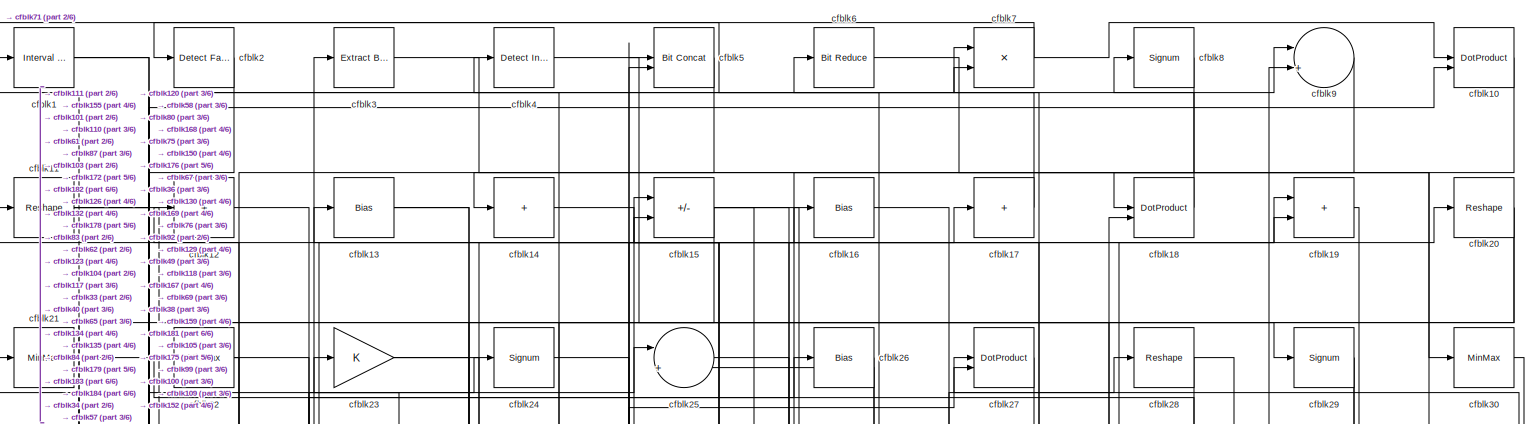
[diagram: root canvas - part 1/6, full width, top band]
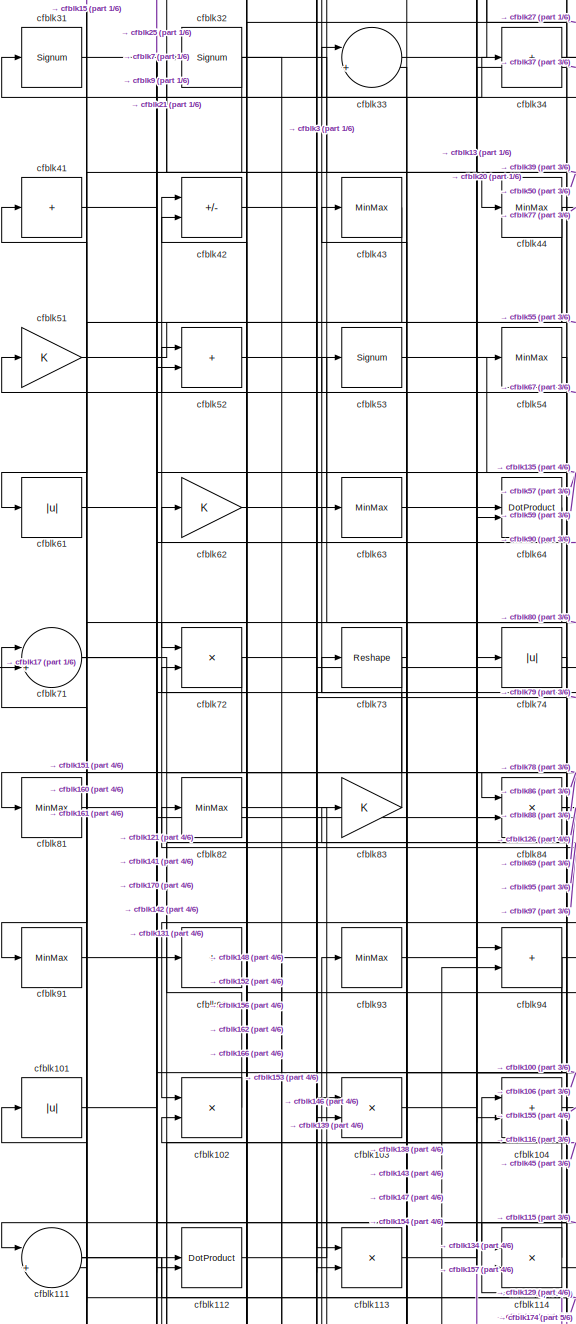
[diagram: root canvas - part 2/6, middle left region]
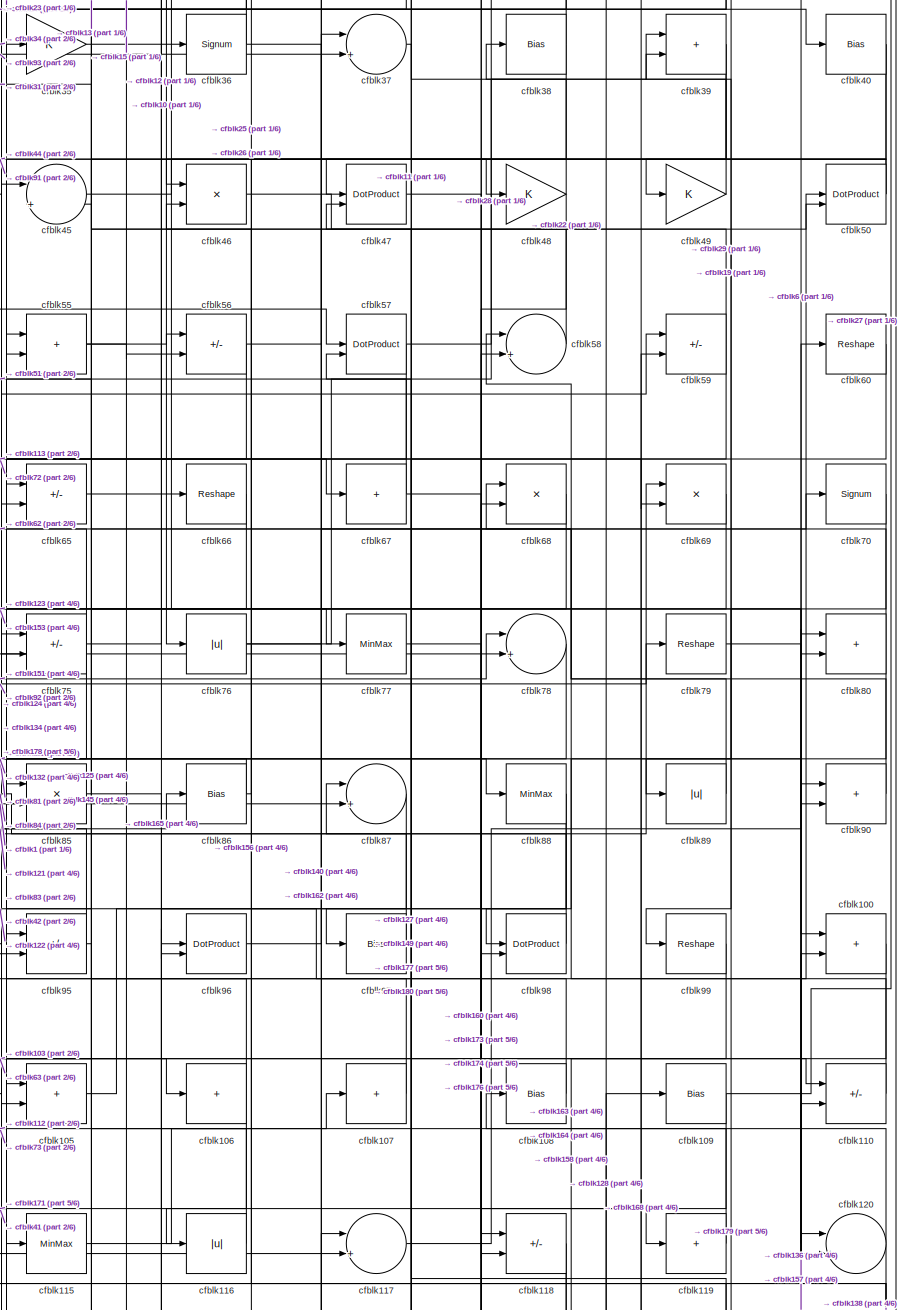
[diagram: root canvas - part 3/6, middle right region]
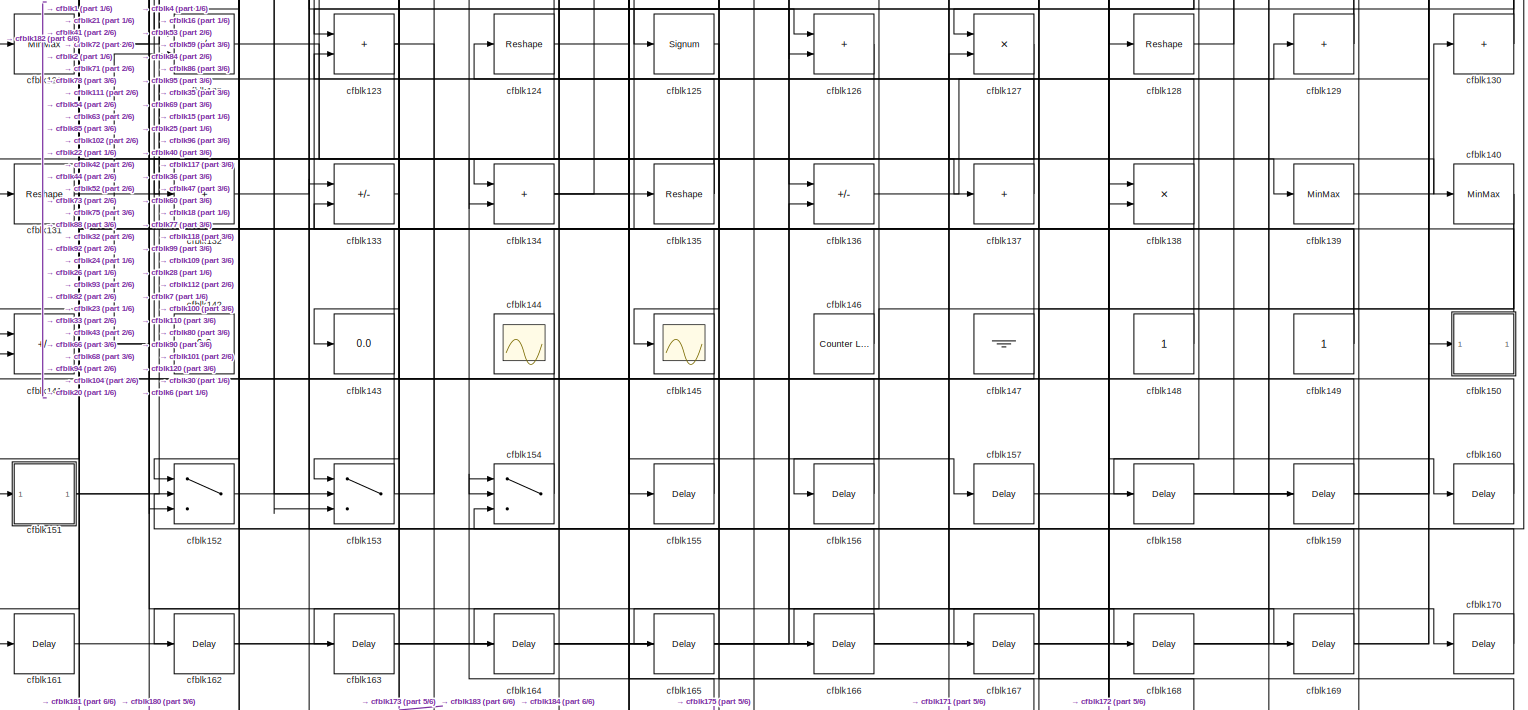
[diagram: root canvas - part 4/6, full width, bottom band]
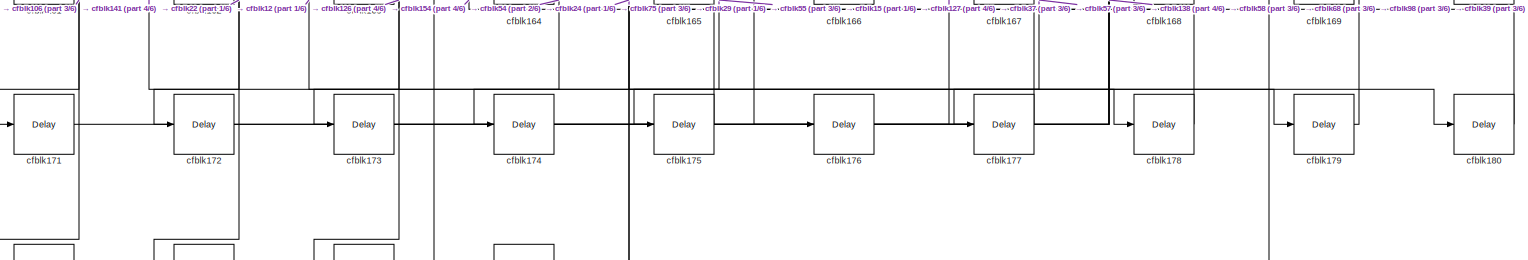
[diagram: root canvas - part 5/6, full width, bottom band]
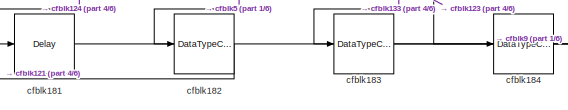
[diagram: root canvas - part 6/6, bottom left region]
MODEL slx_1cc7de63fb2a
KIND model
CONFIG AbsTol = auto
CONFIG EnableMultiTasking = off
CONFIG FixedStep = auto
CONFIG MaxStep = auto
CONFIG MinStep = auto
CONFIG RelTol = 1e-3
CONFIG SampleTimeConstraint = Unconstrained
CONFIG SolverName = VariableStepAuto
CONFIG StartTime = 0.0
CONFIG StopTime = 10.0
BLOCK [Reference] cfblk1  REF=hdlsllib/Logic and Bit
Operations/Interval Test
  SourceBlock = hdlsllib/Logic and Bit\nOperations/Interval Test
  SourceType = Interval Test
BLOCK [DotProduct] cfblk10
  OutDataTypeStr = Inherit: Inherit via internal rule
BLOCK [Sum] cfblk100
  IconShape = rectangular
BLOCK [Abs] cfblk101
  SaturateOnIntegerOverflow = off
BLOCK [Product] cfblk102
  Inputs = */
  RndMeth = Zero
  SaturateOnIntegerOverflow = on
BLOCK [Product] cfblk103
  Inputs = */
  RndMeth = Zero
  SaturateOnIntegerOverflow = on
BLOCK [Sum] cfblk104
  IconShape = rectangular
BLOCK [Sum] cfblk105
  IconShape = rectangular
BLOCK [Sum] cfblk106
  IconShape = rectangular
  Inputs = +
BLOCK [Sum] cfblk107
  IconShape = rectangular
  Inputs = +
BLOCK [Bias] cfblk108
  Bias = 0.0
  SaturateOnIntegerOverflow = off
BLOCK [Bias] cfblk109
  Bias = 0.0
  SaturateOnIntegerOverflow = off
BLOCK [Reshape] cfblk11
BLOCK [Sum] cfblk110
  IconShape = rectangular
  Inputs = +-
BLOCK [Sum] cfblk111
  Inputs = |++
BLOCK [DotProduct] cfblk112
  OutDataTypeStr = Inherit: Inherit via internal rule
BLOCK [Product] cfblk113
  Inputs = */
  RndMeth = Zero
  SaturateOnIntegerOverflow = on
BLOCK [Product] cfblk114
  Inputs = */
  RndMeth = Zero
  SaturateOnIntegerOverflow = on
BLOCK [MinMax] cfblk115
BLOCK [Abs] cfblk116
  SaturateOnIntegerOverflow = off
BLOCK [Sum] cfblk117
  Inputs = |++
BLOCK [Sum] cfblk118
  IconShape = rectangular
  Inputs = +-
BLOCK [Sum] cfblk119
  IconShape = rectangular
  Inputs = +
BLOCK [Sum] cfblk12
  IconShape = rectangular
  Inputs = +
BLOCK [Sum] cfblk120
  Inputs = |++
BLOCK [MinMax] cfblk121
BLOCK [Sum] cfblk122
  IconShape = rectangular
  Inputs = +-
BLOCK [Sum] cfblk123
  IconShape = rectangular
BLOCK [Reshape] cfblk124
BLOCK [Signum] cfblk125
BLOCK [Sum] cfblk126
  IconShape = rectangular
BLOCK [Product] cfblk127
  Inputs = */
  RndMeth = Zero
  SaturateOnIntegerOverflow = on
BLOCK [Reshape] cfblk128
BLOCK [Sum] cfblk129
  IconShape = rectangular
  Inputs = +
BLOCK [Bias] cfblk13
  Bias = 0.0
  SaturateOnIntegerOverflow = off
BLOCK [Sum] cfblk130
  IconShape = rectangular
  Inputs = +
BLOCK [Reshape] cfblk131
BLOCK [Sum] cfblk132
  IconShape = rectangular
  Inputs = +
BLOCK [Sum] cfblk133
  IconShape = rectangular
  Inputs = +-
BLOCK [Sum] cfblk134
  IconShape = rectangular
BLOCK [Reshape] cfblk135
BLOCK [Sum] cfblk136
  IconShape = rectangular
  Inputs = +-
BLOCK [Sum] cfblk137
  IconShape = rectangular
  Inputs = +
BLOCK [Product] cfblk138
  Inputs = */
  RndMeth = Zero
  SaturateOnIntegerOverflow = on
BLOCK [MinMax] cfblk139
BLOCK [Sum] cfblk14
  IconShape = rectangular
  Inputs = +
BLOCK [MinMax] cfblk140
BLOCK [Sum] cfblk141
  IconShape = rectangular
  Inputs = +-
BLOCK [Display] cfblk142
  Decimation = 1
BLOCK [Display] cfblk143
  Decimation = 1
BLOCK [Scope] cfblk144
  Floating = on
  NumInputPorts = 1
  ScopeSpecificationString = Simulink.scopes.TimeScopeBlockCfg('CurrentConfiguration', extmgr.ConfigurationSet(extmgr.Configuration('Core','General UI',true,'FigureColor',[0.156862745098039 0.156862745098039 0.156862745098039]),extmgr.Configuration('Core','Source UI',true),extmgr.Configuration('Sources','WiredSimulink',true,'DataLoggingVariableName','ScopeData1','DataLoggingSaveFormat','StructureWithTime','DataLoggingLimitDat...<+2713ch>
BLOCK [Scope] cfblk145
  Floating = off
  NumInputPorts = 1
  ScopeSpecificationString = Simulink.scopes.TimeScopeBlockCfg('CurrentConfiguration', extmgr.ConfigurationSet(extmgr.Configuration('Core','General UI',true),extmgr.Configuration('Core','Source UI',true),extmgr.Configuration('Sources','WiredSimulink',true,'DataLoggingVariableName','ScopeData2','DataLoggingSaveFormat','Array','DataLoggingLimitDataPoints',true,'DataLoggingDecimation','1'),extmgr.Configuration('Visuals','Time Do...<+868ch>
BLOCK [Reference] cfblk146  REF=hdlsllib/Sources/Counter
Limited
  SourceBlock = hdlsllib/Sources/Counter\nLimited
  SourceType = Counter Limited
BLOCK [Ground] cfblk147
BLOCK [Constant] cfblk148
  SampleTime = -1
BLOCK [Constant] cfblk149
  SampleTime = -1
BLOCK [Sum] cfblk15
  IconShape = rectangular
  Inputs = +-
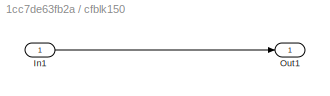
BLOCK [SubSystem] cfblk150
  LibrarySourceBlock = hdlsllib/Ports &\nSubsystems/Subsystem
BLOCK [Inport] cfblk150/In1
BLOCK [Outport] cfblk150/Out1
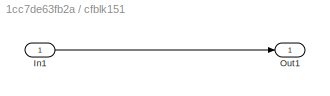
BLOCK [SubSystem] cfblk151
  LibrarySourceBlock = hdlsllib/Ports &\nSubsystems/Subsystem
BLOCK [Inport] cfblk151/In1
BLOCK [Outport] cfblk151/Out1
BLOCK [Switch] cfblk152
  InputSameDT = off
  SaturateOnIntegerOverflow = off
BLOCK [Switch] cfblk153
  InputSameDT = off
  SaturateOnIntegerOverflow = off
BLOCK [Switch] cfblk154
  InputSameDT = off
  SaturateOnIntegerOverflow = off
BLOCK [Delay] cfblk155
  InputPortMap = u0
  SampleTime = 1
BLOCK [Delay] cfblk156
  InputPortMap = u0
  SampleTime = 1
BLOCK [Delay] cfblk157
  InputPortMap = u0
  SampleTime = 1
BLOCK [Delay] cfblk158
  InputPortMap = u0
  SampleTime = 1
BLOCK [Delay] cfblk159
  InputPortMap = u0
  SampleTime = 1
BLOCK [Bias] cfblk16
  Bias = 0.0
  SaturateOnIntegerOverflow = off
BLOCK [Delay] cfblk160
  InputPortMap = u0
  SampleTime = 1
BLOCK [Delay] cfblk161
  InputPortMap = u0
  SampleTime = 1
BLOCK [Delay] cfblk162
  InputPortMap = u0
  SampleTime = 1
BLOCK [Delay] cfblk163
  InputPortMap = u0
  SampleTime = 1
BLOCK [Delay] cfblk164
  InputPortMap = u0
  SampleTime = 1
BLOCK [Delay] cfblk165
  InputPortMap = u0
  SampleTime = 1
BLOCK [Delay] cfblk166
  InputPortMap = u0
  SampleTime = 1
BLOCK [Delay] cfblk167
  InputPortMap = u0
  SampleTime = 1
BLOCK [Delay] cfblk168
  InputPortMap = u0
  SampleTime = 1
BLOCK [Delay] cfblk169
  InputPortMap = u0
  SampleTime = 1
BLOCK [Sum] cfblk17
  IconShape = rectangular
  Inputs = +
BLOCK [Delay] cfblk170
  InputPortMap = u0
  SampleTime = 1
BLOCK [Delay] cfblk171
  InputPortMap = u0
  SampleTime = 1
BLOCK [Delay] cfblk172
  InputPortMap = u0
  SampleTime = 1
BLOCK [Delay] cfblk173
  InputPortMap = u0
  SampleTime = 1
BLOCK [Delay] cfblk174
  InputPortMap = u0
  SampleTime = 1
BLOCK [Delay] cfblk175
  InputPortMap = u0
  SampleTime = 1
BLOCK [Delay] cfblk176
  InputPortMap = u0
  SampleTime = 1
BLOCK [Delay] cfblk177
  InputPortMap = u0
  SampleTime = 1
BLOCK [Delay] cfblk178
  InputPortMap = u0
  SampleTime = 1
BLOCK [Delay] cfblk179
  InputPortMap = u0
  SampleTime = 1
BLOCK [DotProduct] cfblk18
  OutDataTypeStr = Inherit: Inherit via internal rule
BLOCK [Delay] cfblk180
  InputPortMap = u0
  SampleTime = 1
BLOCK [Delay] cfblk181
  InputPortMap = u0
  SampleTime = 1
BLOCK [DataTypeConversion] cfblk182
  OutDataTypeStr = uint8
  RndMeth = Floor
  SaturateOnIntegerOverflow = off
BLOCK [DataTypeConversion] cfblk183
  OutDataTypeStr = uint8
  RndMeth = Floor
  SaturateOnIntegerOverflow = off
BLOCK [DataTypeConversion] cfblk184
  OutDataTypeStr = uint8
  RndMeth = Floor
  SaturateOnIntegerOverflow = off
BLOCK [Sum] cfblk19
  IconShape = rectangular
BLOCK [Reference] cfblk2  REF=hdlsllib/Logic and Bit
Operations/Detect Fall
Nonpositive
  SourceBlock = hdlsllib/Logic and Bit\nOperations/Detect Fall\nNonpositive
  SourceType = Detect Fall Nonpositive
BLOCK [Reshape] cfblk20
BLOCK [MinMax] cfblk21
BLOCK [MinMax] cfblk22
BLOCK [Gain] cfblk23
BLOCK [Signum] cfblk24
BLOCK [Sum] cfblk25
  Inputs = |++
BLOCK [Bias] cfblk26
  Bias = 0.0
  SaturateOnIntegerOverflow = off
BLOCK [DotProduct] cfblk27
  OutDataTypeStr = Inherit: Inherit via internal rule
BLOCK [Reshape] cfblk28
BLOCK [Signum] cfblk29
BLOCK [Reference] cfblk3  REF=simulink/Logic and Bit
Operations/Extract Bits
  LibrarySourceBlock = hdlsllib/Logic and Bit\nOperations/Extract Bits
  SourceBlock = simulink/Logic and Bit\nOperations/Extract Bits
  SourceType = Extract Bits
BLOCK [MinMax] cfblk30
BLOCK [Signum] cfblk31
BLOCK [Signum] cfblk32
BLOCK [Sum] cfblk33
  Inputs = |++
BLOCK [Sum] cfblk34
  IconShape = rectangular
  Inputs = +
BLOCK [Gain] cfblk35
BLOCK [Signum] cfblk36
BLOCK [Sum] cfblk37
  Inputs = |++
BLOCK [Bias] cfblk38
  Bias = 0.0
  SaturateOnIntegerOverflow = off
BLOCK [Sum] cfblk39
  IconShape = rectangular
BLOCK [Reference] cfblk4  REF=simulink/Logic and Bit
Operations/Detect
Increase
  LibrarySourceBlock = hdlsllib/Logic and Bit\nOperations/Detect\nIncrease
  SourceBlock = simulink/Logic and Bit\nOperations/Detect\nIncrease
  SourceType = Detect Increase
BLOCK [Bias] cfblk40
  Bias = 0.0
  SaturateOnIntegerOverflow = off
BLOCK [Sum] cfblk41
  IconShape = rectangular
  Inputs = +
BLOCK [Sum] cfblk42
  IconShape = rectangular
  Inputs = +-
BLOCK [MinMax] cfblk43
BLOCK [MinMax] cfblk44
BLOCK [Sum] cfblk45
  Inputs = |++
BLOCK [Product] cfblk46
  Inputs = */
  RndMeth = Zero
  SaturateOnIntegerOverflow = on
BLOCK [DotProduct] cfblk47
  OutDataTypeStr = Inherit: Inherit via internal rule
BLOCK [Gain] cfblk48
BLOCK [Gain] cfblk49
BLOCK [Reference] cfblk5  REF=hdlsllib/Logic and Bit
Operations/Bit Concat
  SourceBlock = hdlsllib/Logic and Bit\nOperations/Bit Concat
  SourceType = Bit Concat
BLOCK [DotProduct] cfblk50
  OutDataTypeStr = Inherit: Inherit via internal rule
BLOCK [Gain] cfblk51
BLOCK [Sum] cfblk52
  IconShape = rectangular
BLOCK [Signum] cfblk53
BLOCK [MinMax] cfblk54
BLOCK [Sum] cfblk55
  IconShape = rectangular
BLOCK [Sum] cfblk56
  IconShape = rectangular
  Inputs = +-
BLOCK [DotProduct] cfblk57
  OutDataTypeStr = Inherit: Inherit via internal rule
BLOCK [Sum] cfblk58
  Inputs = |++
BLOCK [Sum] cfblk59
  IconShape = rectangular
  Inputs = +-
BLOCK [Reference] cfblk6  REF=hdlsllib/Logic and Bit
Operations/Bit Reduce
  SourceBlock = hdlsllib/Logic and Bit\nOperations/Bit Reduce
  SourceType = Bit Reduce
BLOCK [Reshape] cfblk60
BLOCK [Abs] cfblk61
  SaturateOnIntegerOverflow = off
BLOCK [Gain] cfblk62
BLOCK [MinMax] cfblk63
BLOCK [DotProduct] cfblk64
  OutDataTypeStr = Inherit: Inherit via internal rule
BLOCK [Sum] cfblk65
  IconShape = rectangular
  Inputs = +-
BLOCK [Reshape] cfblk66
BLOCK [Sum] cfblk67
  IconShape = rectangular
  Inputs = +
BLOCK [Product] cfblk68
  Inputs = */
  RndMeth = Zero
  SaturateOnIntegerOverflow = on
BLOCK [Product] cfblk69
  Inputs = */
  RndMeth = Zero
  SaturateOnIntegerOverflow = on
BLOCK [Product] cfblk7
  Inputs = */
  RndMeth = Zero
  SaturateOnIntegerOverflow = on
BLOCK [Signum] cfblk70
BLOCK [Sum] cfblk71
  Inputs = |++
BLOCK [Product] cfblk72
  Inputs = */
  RndMeth = Zero
  SaturateOnIntegerOverflow = on
BLOCK [Reshape] cfblk73
BLOCK [Abs] cfblk74
  SaturateOnIntegerOverflow = off
BLOCK [Sum] cfblk75
  IconShape = rectangular
  Inputs = +-
BLOCK [Abs] cfblk76
  SaturateOnIntegerOverflow = off
BLOCK [MinMax] cfblk77
BLOCK [Sum] cfblk78
  Inputs = |++
BLOCK [Reshape] cfblk79
BLOCK [Signum] cfblk8
BLOCK [Sum] cfblk80
  IconShape = rectangular
BLOCK [MinMax] cfblk81
BLOCK [MinMax] cfblk82
BLOCK [Gain] cfblk83
BLOCK [Product] cfblk84
  Inputs = */
  RndMeth = Zero
  SaturateOnIntegerOverflow = on
BLOCK [Product] cfblk85
  Inputs = */
  RndMeth = Zero
  SaturateOnIntegerOverflow = on
BLOCK [Bias] cfblk86
  Bias = 0.0
  SaturateOnIntegerOverflow = off
BLOCK [Sum] cfblk87
  Inputs = |++
BLOCK [MinMax] cfblk88
BLOCK [Abs] cfblk89
  SaturateOnIntegerOverflow = off
BLOCK [Sum] cfblk9
  Inputs = |++
BLOCK [Sum] cfblk90
  IconShape = rectangular
BLOCK [MinMax] cfblk91
BLOCK [Sum] cfblk92
  IconShape = rectangular
  Inputs = +
BLOCK [MinMax] cfblk93
BLOCK [Sum] cfblk94
  IconShape = rectangular
BLOCK [Sum] cfblk95
  IconShape = rectangular
  Inputs = +-
BLOCK [DotProduct] cfblk96
  OutDataTypeStr = Inherit: Inherit via internal rule
BLOCK [Bias] cfblk97
  Bias = 0.0
  SaturateOnIntegerOverflow = off
BLOCK [DotProduct] cfblk98
  OutDataTypeStr = Inherit: Inherit via internal rule
BLOCK [Reshape] cfblk99
LINE cfblk100:1 -> cfblk103:2
LINE cfblk101:1 -> cfblk25:1
LINE cfblk102:1 -> cfblk88:1
LINE cfblk103:1 -> cfblk64:2
LINE cfblk104:1 -> cfblk155:1
LINE cfblk105:1 -> cfblk50:1
NET cfblk106:1 -> cfblk171:1, cfblk72:2
LINE cfblk107:1 -> cfblk45:2
LINE cfblk108:1 -> cfblk85:2
NET cfblk109:1 -> cfblk116:1, cfblk27:1
LINE cfblk10:1 -> cfblk36:1
LINE cfblk110:1 -> cfblk58:1
NET cfblk111:1 -> cfblk142:1, cfblk7:1
LINE cfblk112:1 -> cfblk45:1
LINE cfblk113:1 -> cfblk64:1
LINE cfblk114:1 -> cfblk82:1
LINE cfblk115:1 -> cfblk107:1
LINE cfblk116:1 -> cfblk73:1
LINE cfblk117:1 -> cfblk60:1
NET cfblk118:1 -> cfblk163:1, cfblk164:1
LINE cfblk119:1 -> cfblk108:1
NET cfblk11:1 -> cfblk10:2, cfblk118:1, cfblk69:2
NET cfblk120:1 -> cfblk138:2, cfblk15:1
NET cfblk121:1 -> cfblk63:1, cfblk85:1
LINE cfblk122:1 -> cfblk137:1
NET cfblk123:1 -> cfblk141:1, cfblk184:1, cfblk23:1
NET cfblk124:1 -> cfblk104:1, cfblk181:1, cfblk86:1
LINE cfblk125:1 -> cfblk165:1
LINE cfblk126:1 -> cfblk173:1
LINE cfblk127:1 -> cfblk154:2
LINE cfblk128:1 -> cfblk109:1
NET cfblk129:1 -> cfblk112:1, cfblk7:2
LINE cfblk12:1 -> cfblk178:1
NET cfblk130:1 -> cfblk101:1, cfblk6:1
LINE cfblk131:1 -> cfblk54:1
LINE cfblk132:1 -> cfblk24:1
LINE cfblk133:1 -> cfblk183:1
NET cfblk134:1 -> cfblk16:1, cfblk59:1, cfblk95:2
NET cfblk135:1 -> cfblk131:1, cfblk4:1
LINE cfblk136:1 -> cfblk90:1
LINE cfblk137:1 -> cfblk124:1
NET cfblk138:1 -> cfblk133:2, cfblk53:1
LINE cfblk139:1 -> cfblk130:1
NET cfblk13:1 -> cfblk104:2, cfblk117:2
NET cfblk140:1 -> cfblk166:1, cfblk167:1
NET cfblk141:1 -> cfblk122:2, cfblk180:1, cfblk32:1
LINE cfblk146:1 -> cfblk93:1
NET cfblk147:1 -> cfblk141:2, cfblk33:1
LINE cfblk148:1 -> cfblk52:1
NET cfblk149:1 -> cfblk35:1, cfblk47:2
LINE cfblk14:1 -> cfblk57:1
LINE cfblk150/In1:1 -> cfblk150/Out1:1
LINE cfblk150:1 -> cfblk21:1
LINE cfblk151/In1:1 -> cfblk151/Out1:1
NET cfblk151:1 -> cfblk129:1, cfblk78:1
LINE cfblk152:1 -> cfblk26:1
NET cfblk153:1 -> cfblk41:1, cfblk94:2
LINE cfblk154:1 -> cfblk43:1
LINE cfblk155:1 -> cfblk1:1
LINE cfblk156:1 -> cfblk102:2
LINE cfblk157:1 -> cfblk110:2
LINE cfblk158:1 -> cfblk80:1
LINE cfblk159:1 -> cfblk123:2
NET cfblk15:1 -> cfblk111:2, cfblk150:1, cfblk176:1, cfblk67:1
LINE cfblk160:1 -> cfblk71:1
LINE cfblk161:1 -> cfblk136:2
LINE cfblk162:1 -> cfblk117:1
LINE cfblk163:1 -> cfblk100:2
LINE cfblk164:1 -> cfblk120:2
LINE cfblk165:1 -> cfblk96:1
LINE cfblk166:1 -> cfblk42:2
LINE cfblk167:1 -> cfblk18:2
LINE cfblk168:1 -> cfblk59:2
LINE cfblk169:1 -> cfblk133:1
LINE cfblk16:1 -> cfblk169:1
LINE cfblk170:1 -> cfblk154:3
LINE cfblk171:1 -> cfblk127:2
LINE cfblk172:1 -> cfblk138:1
LINE cfblk173:1 -> cfblk68:2
LINE cfblk174:1 -> cfblk58:2
LINE cfblk175:1 -> cfblk154:1
LINE cfblk176:1 -> cfblk98:2
LINE cfblk177:1 -> cfblk55:2
LINE cfblk178:1 -> cfblk75:1
LINE cfblk179:1 -> cfblk39:2
LINE cfblk17:1 -> cfblk71:2
LINE cfblk180:1 -> cfblk57:2
LINE cfblk181:1 -> cfblk9:2
LINE cfblk182:1 -> cfblk121:1
LINE cfblk183:1 -> cfblk5:1
LINE cfblk184:1 -> cfblk5:2
LINE cfblk18:1 -> cfblk8:1
LINE cfblk19:1 -> cfblk99:1
NET cfblk1:1 -> cfblk110:1, cfblk87:2
NET cfblk20:1 -> cfblk134:1, cfblk84:2
LINE cfblk21:1 -> cfblk103:1
NET cfblk22:1 -> cfblk126:1, cfblk172:1
NET cfblk23:1 -> cfblk40:1, cfblk65:2
LINE cfblk24:1 -> cfblk179:1
LINE cfblk25:1 -> cfblk168:1
LINE cfblk26:1 -> cfblk65:1
LINE cfblk27:1 -> cfblk92:1
NET cfblk28:1 -> cfblk105:2, cfblk159:1
NET cfblk29:1 -> cfblk105:1, cfblk175:1
LINE cfblk2:1 -> cfblk152:3
LINE cfblk30:1 -> cfblk152:2
LINE cfblk31:1 -> cfblk114:2
NET cfblk32:1 -> cfblk112:2, cfblk153:2, cfblk74:1
LINE cfblk33:1 -> cfblk20:1
NET cfblk34:1 -> cfblk27:2, cfblk90:2
LINE cfblk35:1 -> cfblk66:1
NET cfblk36:1 -> cfblk140:1, cfblk25:2
LINE cfblk37:1 -> cfblk177:1
NET cfblk38:1 -> cfblk22:1, cfblk46:1
NET cfblk39:1 -> cfblk91:1, cfblk95:1
LINE cfblk3:1 -> cfblk30:1
NET cfblk40:1 -> cfblk156:1, cfblk47:1
LINE cfblk41:1 -> cfblk115:1
LINE cfblk42:1 -> cfblk80:2
LINE cfblk43:1 -> cfblk61:1
NET cfblk44:1 -> cfblk161:1, cfblk162:1, cfblk77:1
LINE cfblk45:1 -> cfblk48:1
LINE cfblk46:1 -> cfblk50:2
LINE cfblk47:1 -> cfblk128:1
NET cfblk48:1 -> cfblk118:2, cfblk38:1
LINE cfblk49:1 -> cfblk11:1
LINE cfblk4:1 -> cfblk29:1
NET cfblk50:1 -> cfblk44:1, cfblk49:1
LINE cfblk51:1 -> cfblk55:1
LINE cfblk52:1 -> cfblk94:1
LINE cfblk53:1 -> cfblk135:1
LINE cfblk54:1 -> cfblk174:1
NET cfblk55:1 -> cfblk56:1, cfblk56:2
NET cfblk56:1 -> cfblk37:1, cfblk75:2
NET cfblk57:1 -> cfblk39:1, cfblk72:1
LINE cfblk58:1 -> cfblk13:1
NET cfblk59:1 -> cfblk113:2, cfblk31:1
LINE cfblk5:1 -> cfblk182:1
LINE cfblk60:1 -> cfblk127:1
LINE cfblk61:1 -> cfblk9:1
LINE cfblk62:1 -> cfblk17:1
LINE cfblk63:1 -> cfblk106:1
LINE cfblk64:1 -> cfblk111:1
LINE cfblk65:1 -> cfblk76:1
LINE cfblk66:1 -> cfblk153:1
NET cfblk67:1 -> cfblk119:1, cfblk51:1
LINE cfblk68:1 -> cfblk123:1
LINE cfblk69:1 -> cfblk125:1
LINE cfblk6:1 -> cfblk100:1
LINE cfblk70:1 -> cfblk89:1
NET cfblk71:1 -> cfblk113:1, cfblk170:1, cfblk52:2
NET cfblk72:1 -> cfblk151:1, cfblk78:2
NET cfblk73:1 -> cfblk152:1, cfblk33:2
LINE cfblk74:1 -> cfblk114:1
NET cfblk75:1 -> cfblk12:1, cfblk132:1, cfblk19:2
NET cfblk76:1 -> cfblk19:1, cfblk28:1
LINE cfblk77:1 -> cfblk160:1
LINE cfblk78:1 -> cfblk84:1
LINE cfblk79:1 -> cfblk120:1
NET cfblk7:1 -> cfblk10:1, cfblk2:1
NET cfblk80:1 -> cfblk15:2, cfblk98:1
LINE cfblk81:1 -> cfblk34:1
LINE cfblk82:1 -> cfblk139:1
LINE cfblk83:1 -> cfblk3:1
NET cfblk84:1 -> cfblk126:2, cfblk69:1
LINE cfblk85:1 -> cfblk136:1
NET cfblk86:1 -> cfblk46:2, cfblk81:1
LINE cfblk87:1 -> cfblk96:2
NET cfblk88:1 -> cfblk122:1, cfblk97:1
LINE cfblk89:1 -> cfblk68:1
LINE cfblk8:1 -> cfblk14:1
LINE cfblk90:1 -> cfblk62:1
LINE cfblk91:1 -> cfblk102:1
NET cfblk92:1 -> cfblk153:3, cfblk79:1
LINE cfblk93:1 -> cfblk37:2
NET cfblk94:1 -> cfblk134:2, cfblk143:1, cfblk157:1
NET cfblk95:1 -> cfblk145:1, cfblk83:1
LINE cfblk96:1 -> cfblk70:1
LINE cfblk97:1 -> cfblk42:1
LINE cfblk98:1 -> cfblk87:1
LINE cfblk99:1 -> cfblk158:1
LINE cfblk9:1 -> cfblk18:1
note: NET lines group one-source signal fan-out (src -> all destinations, sorted); 1:1 wires keep LINE
